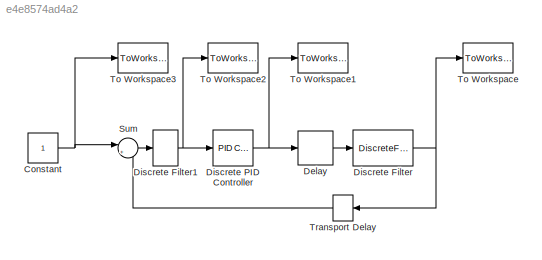
MODEL slx_e4e8574ad4a2
KIND model
CONFIG AbsTol = auto
CONFIG EnableMultiTasking = off
CONFIG FixedStep = st
CONFIG MaxStep = auto
CONFIG MinStep = auto
CONFIG RelTol = 1e-3
CONFIG SampleTimeConstraint = Unconstrained
CONFIG SolverName = FixedStepDiscrete
CONFIG StartTime = 0
CONFIG StopTime = n
BLOCK [Constant] Constant
BLOCK [Delay] Delay
  DelayLength = nk
  InputPortMap = u0
  SampleTime = 1
BLOCK [DiscreteFilter] Discrete Filter
  Denominator = A
  InputPortMap = u0
  Numerator = B
  SampleTime = 1
BLOCK [DiscreteFilter] Discrete Filter1
  Denominator = 1
  InputPortMap = u0
  Numerator = 1
  SampleTime = 1
BLOCK [Reference] Discrete PID Controller  REF=slpidlib/PID Controller
  LibrarySourceBlock = simulink/Discrete/Discrete PID Controller
  SourceBlock = slpidlib/PID Controller
  SourceType = PID 1dof
BLOCK [Sum] Sum
  Inputs = |+-
BLOCK [ToWorkspace] To Workspace
  FixptAsFi = on
  MaxDataPoints = inf
  SampleTime = st
  SaveFormat = Timeseries
  VariableName = arx
BLOCK [ToWorkspace] To Workspace1
  FixptAsFi = on
  MaxDataPoints = inf
  SampleTime = st
  SaveFormat = Timeseries
  VariableName = ster
BLOCK [ToWorkspace] To Workspace2
  FixptAsFi = on
  MaxDataPoints = inf
  SampleTime = st
  SaveFormat = Timeseries
  VariableName = err
BLOCK [ToWorkspace] To Workspace3
  FixptAsFi = on
  MaxDataPoints = inf
  SampleTime = st
  SaveFormat = Timeseries
  VariableName = gen
BLOCK [TransportDelay] Transport Delay
  DelayTime = 0.001
  NameLocation = top
NET Constant:1 -> Sum:1, To Workspace3:1
LINE Delay:1 -> Discrete Filter:1
NET Discrete Filter1:1 -> Discrete PID Controller:1, To Workspace2:1
NET Discrete Filter:1 -> To Workspace:1, Transport Delay:1
NET Discrete PID Controller:1 -> Delay:1, To Workspace1:1
LINE Sum:1 -> Discrete Filter1:1
LINE Transport Delay:1 -> Sum:2
note: NET lines group one-source signal fan-out (src -> all destinations, sorted); 1:1 wires keep LINE
